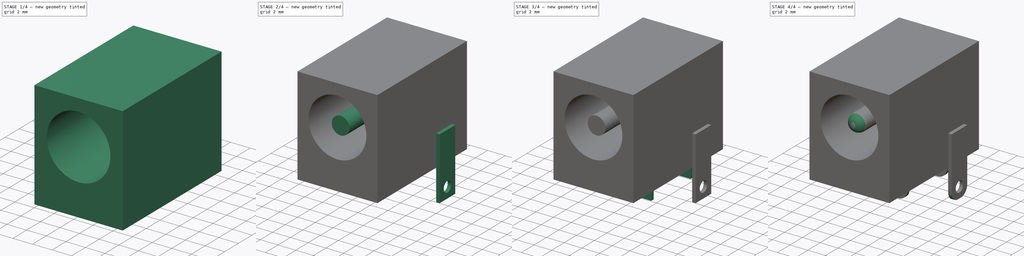
[diagram: build sequence overview — one tinted view per stage of 4, left to right]
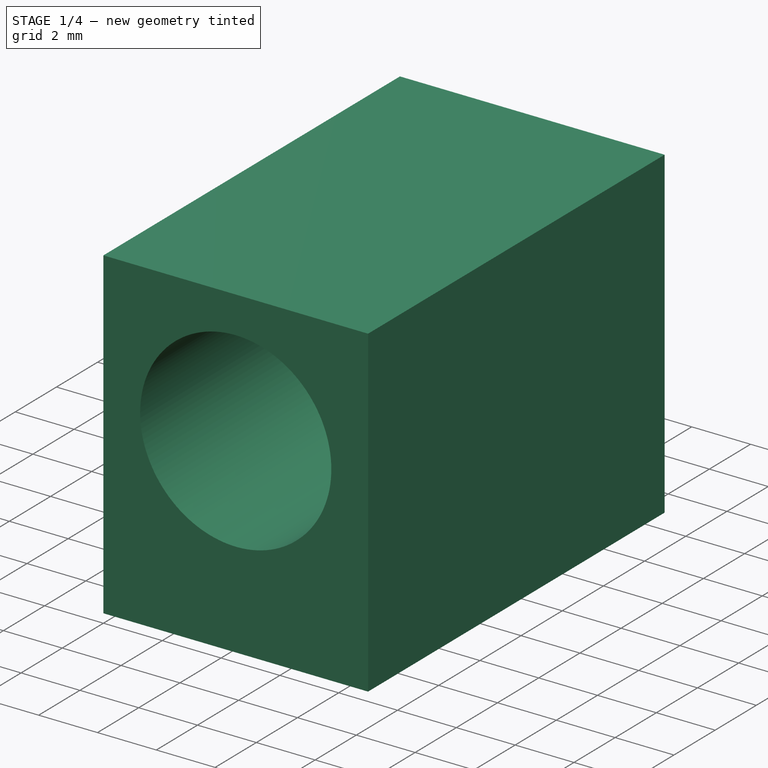
[diagram: stage 1 of 4 — iso view after this stage's code; geometry added in this stage tinted green]
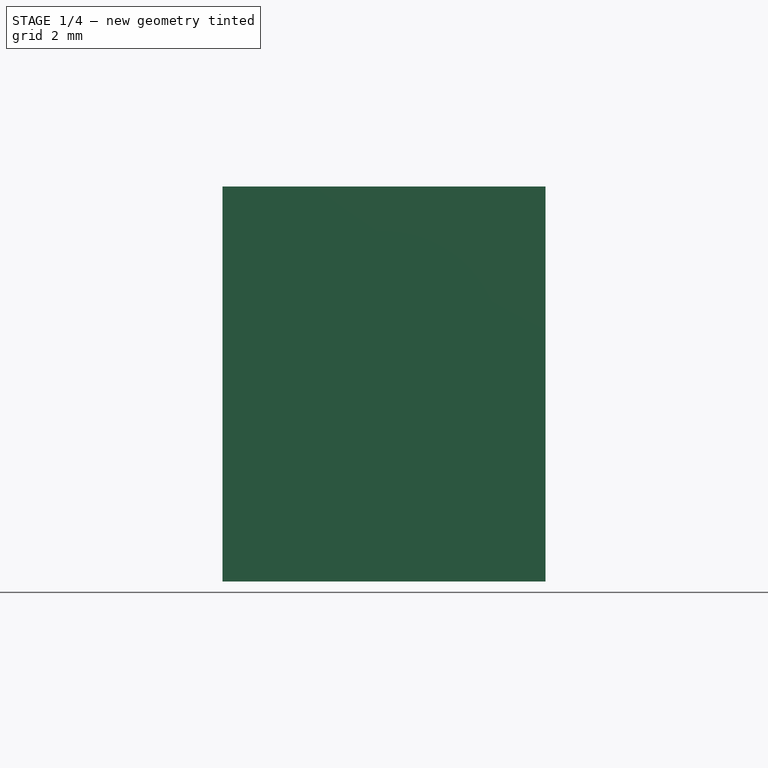
[diagram: stage 1 of 4 — front view after this stage's code; geometry added in this stage tinted green]
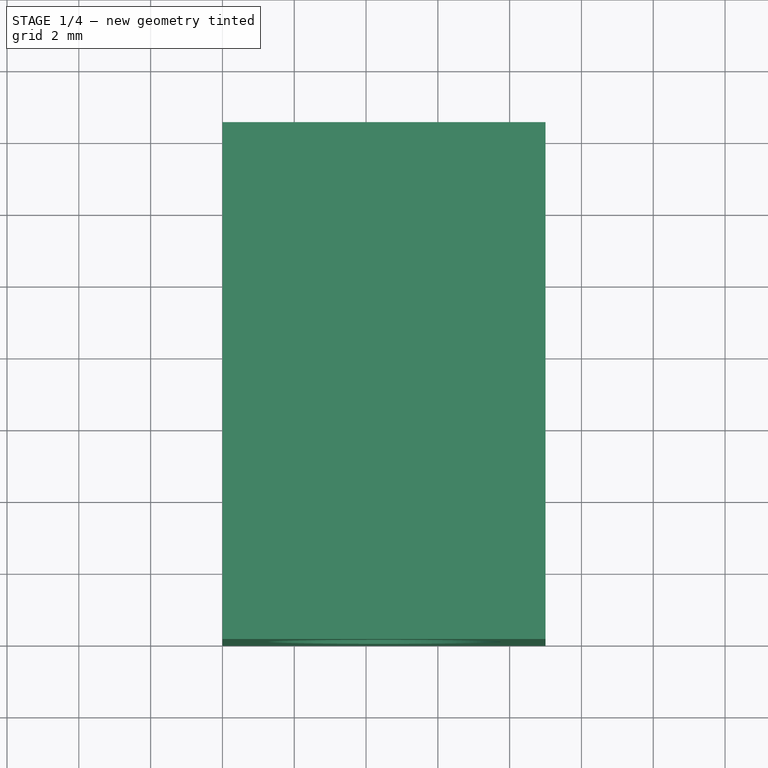
[diagram: stage 1 of 4 — top view after this stage's code; geometry added in this stage tinted green]
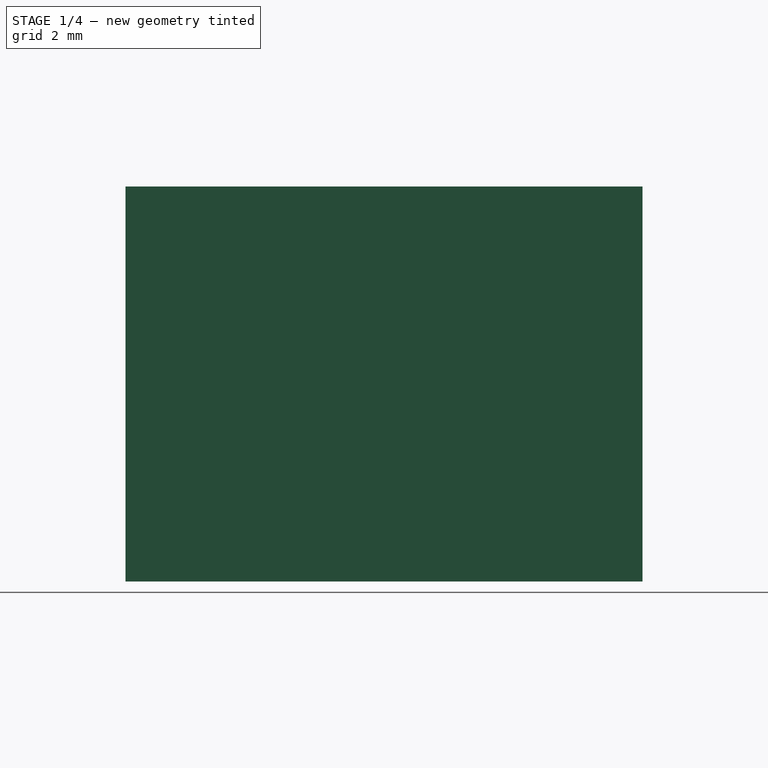
[diagram: stage 1 of 4 — right view after this stage's code; geometry added in this stage tinted green]
FCSTD DOCUMENT  (FreeCAD 1.0R39319 (Git))
Label: CUI_PJ002A
License: All rights reserved
LicenseURL: https://en.wikipedia.org/wiki/All_rights_reserved
objects: Sketcher::SketchObject×8, PartDesign::Pad×5, PartDesign::Hole×2, PartDesign::Fillet×2, PartDesign::Pocket×1, PartDesign::Body×1, Part::Feature×1
note: 48 computed .brp shape members not serialized (recipe doc carries the construction recipe); baked Part::Feature solids carry a one-line shape summary decoded from their .brp

FEATURE [Sketcher::SketchObject] Sketch
  ArcFitTolerance = 1e-06
  AttachmentSupport = -> [XZ_Plane]
  FullyConstrained = true
  MakeInternals = false
  MapMode = 5
  Placement = pos=(0,0,0) rot=(1,0,0;1.5708rad)
  sketch-geometry (4):
    g0: LineSegment StartX=0 StartY=0 StartZ=0 EndX=0 EndY=-11 EndZ=0
    g1: LineSegment StartX=0 StartY=-11 StartZ=0 EndX=9 EndY=-11 EndZ=0
    g2: LineSegment StartX=9 StartY=-11 StartZ=0 EndX=9 EndY=0 EndZ=0
    g3: LineSegment StartX=9 StartY=0 StartZ=0 EndX=0 EndY=0 EndZ=0
  constraints (11):
    c: Coincident(g0,g1)
    c: Coincident(g1,g2)
    c: Coincident(g2,g3)
    c: Coincident(g3,g0)
    c: Vertical(g0)
    c: Vertical(g2)
    c: Horizontal(g1)
    c: Horizontal(g3)
    c: Coincident(g0,g-1)
    c: DistanceX(g3,g3) = 9
    c: DistanceY(g0,g0) = 11
FEATURE [PartDesign::Pad] Pad
  Direction = (0,-1,2e-16)
  Length = 14.4
  Length2 = 10
  Placement = pos=(0,0,0) rot=(1,0,0;1.5708rad)
  Profile = -> Sketch
  ReferenceAxis = -> Sketch [N_Axis]
  Refine = true
  Reversed = true
  Suppressed = false
  Type = 0
FEATURE [Sketcher::SketchObject] Sketch001
  ArcFitTolerance = 1e-06
  AttachmentSupport = -> [Pad]
  ExternalGeometry = -> [Pad]
  FullyConstrained = true
  MakeInternals = false
  MapMode = 5
  Placement = pos=(0,-1.2e-15,0) rot=(1,0,0;1.5708rad)
  sketch-geometry (2):
    g0: Circle CenterX=4.5 CenterY=-4.5 CenterZ=0 NormalX=0 NormalY=0 NormalZ=1 AngleXU=0 Radius=3.25
    g1: LineSegment [constr] StartX=4.5 StartY=0 StartZ=0 EndX=4.5 EndY=-11 EndZ=0
  constraints (5):
    c: Symmetric(g-3,g-3,g1)
    c: Symmetric(g-5,g-5,g1)
    c: PointOnObject(g0,g1)
    c: DistanceY(g1,g0) = 6.5
    c: Diameter(g0) = 6.5
FEATURE [PartDesign::Pocket] Pocket
  BaseFeature = -> Pad
  Direction = (0,1,-2e-16)
  Length = 10
  Length2 = 5
  Placement = pos=(0,0,0) rot=(1,0,0;1.5708rad)
  Profile = -> Sketch001
  ReferenceAxis = -> Sketch001 [N_Axis]
  Refine = true
  Suppressed = false
  Type = 0
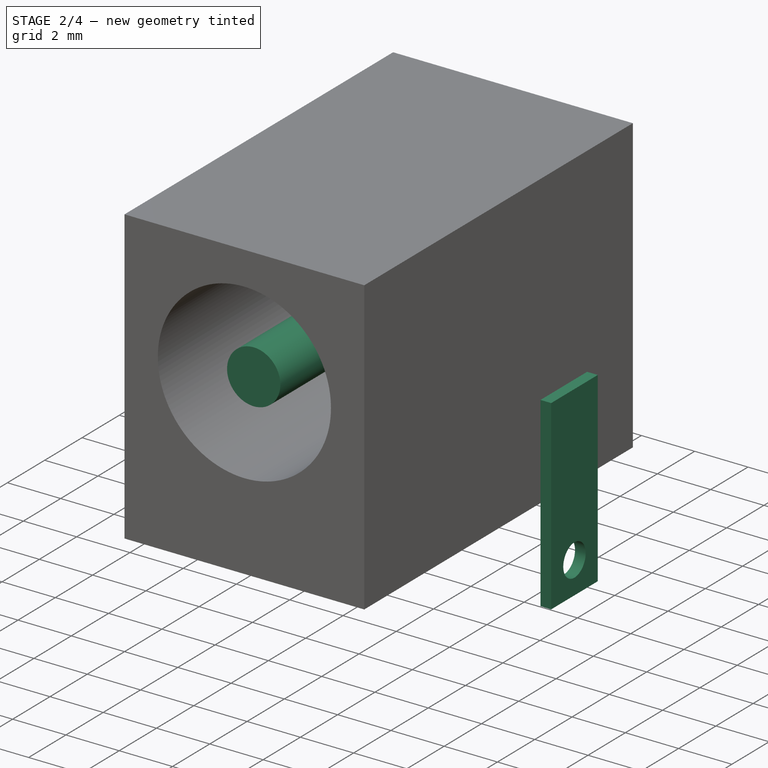
[diagram: stage 2 of 4 — iso view after this stage's code; geometry added in this stage tinted green]
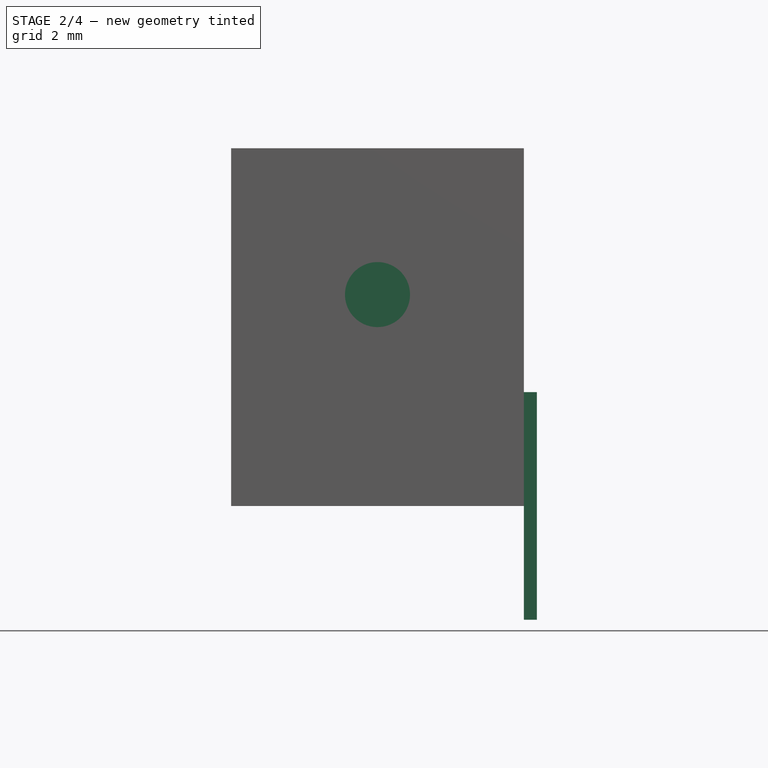
[diagram: stage 2 of 4 — front view after this stage's code; geometry added in this stage tinted green]
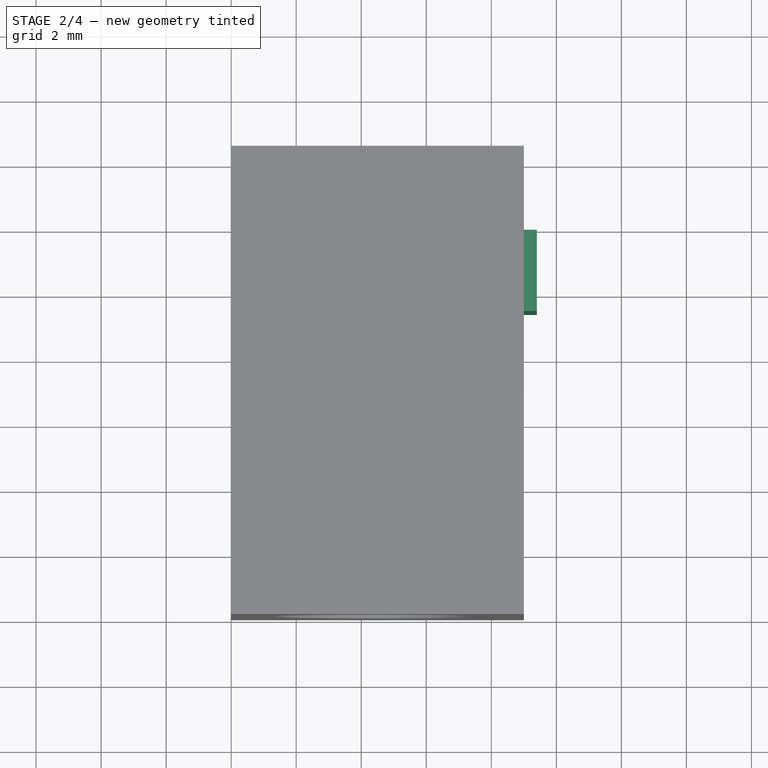
[diagram: stage 2 of 4 — top view after this stage's code; geometry added in this stage tinted green]
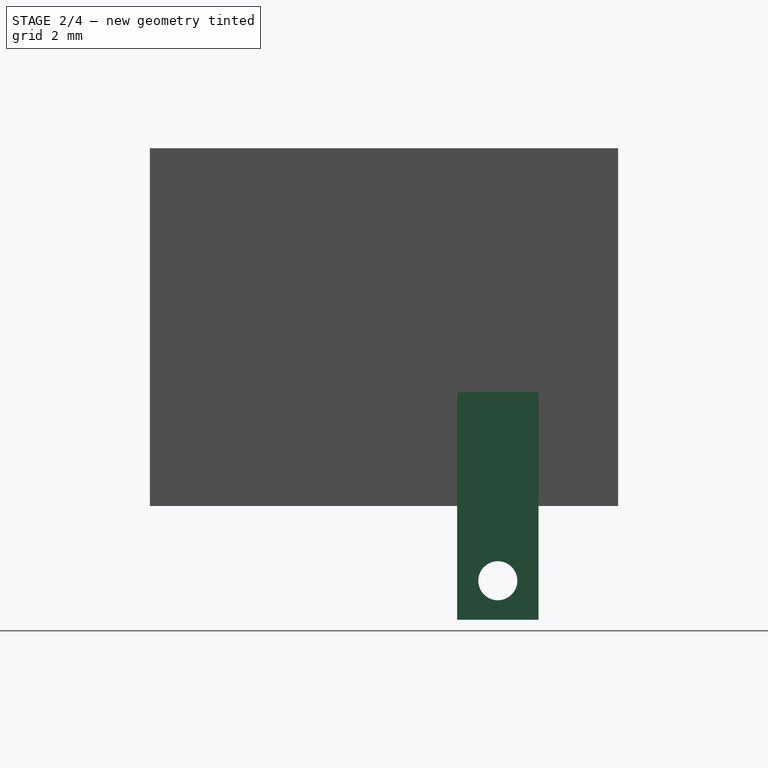
[diagram: stage 2 of 4 — right view after this stage's code; geometry added in this stage tinted green]
FEATURE [Sketcher::SketchObject] Sketch002
  ArcFitTolerance = 1e-06
  AttachmentOffset = pos=(0,0,-0.5) rot=(0,0,1;0rad)
  AttachmentSupport = -> [Pocket]
  ExternalGeometry = -> [Pocket]
  FullyConstrained = true
  MakeInternals = false
  MapMode = 5
  Placement = pos=(0,0.5,-1e-16) rot=(1,0,0;1.5708rad)
  sketch-geometry (1):
    g0: Circle CenterX=4.5 CenterY=-4.5 CenterZ=0 NormalX=0 NormalY=0 NormalZ=1 AngleXU=0 Radius=1
  constraints (2):
    c: Diameter(g0) = 2
    c: Coincident(g0,g-3)
FEATURE [PartDesign::Pad] Pad001
  BaseFeature = -> Pocket
  Direction = (0,-1,2e-16)
  Length = 10
  Length2 = 10
  Placement = pos=(0,0,0) rot=(1,0,0;1.5708rad)
  Profile = -> Sketch002
  ReferenceAxis = -> Sketch002 [N_Axis]
  Refine = true
  Reversed = true
  Suppressed = false
  Type = 0
FEATURE [Sketcher::SketchObject] Sketch003
  ArcFitTolerance = 1e-06
  AttachmentSupport = -> [Pad001]
  ExternalGeometry = -> [Pad001]
  FullyConstrained = true
  MakeInternals = false
  MapMode = 5
  Placement = pos=(9,0,0) rot=(0.707107,0,0.707107;3.14159rad)
  sketch-geometry (6):
    g0: GeomPoint [constr] X=-11 Y=-10.7 Z=0
    g1: LineSegment StartX=-14.5 StartY=-11.95 StartZ=0 EndX=-7.5 EndY=-11.95 EndZ=0
    g2: LineSegment StartX=-7.5 StartY=-11.95 StartZ=0 EndX=-7.5 EndY=-9.45 EndZ=0
    g3: LineSegment StartX=-7.5 StartY=-9.45 StartZ=0 EndX=-14.5 EndY=-9.45 EndZ=0
    g4: LineSegment StartX=-14.5 StartY=-9.45 StartZ=0 EndX=-14.5 EndY=-11.95 EndZ=0
    g5: GeomPoint [constr] X=-11 Y=-10.7 Z=0
  constraints (14):
    c: PointOnObject(g0,g-3)
    c: DistanceY(g0,g-3) = 10.7
    c: Coincident(g1,g2)
    c: Coincident(g2,g3)
    c: Coincident(g3,g4)
    c: Coincident(g4,g1)
    c: Horizontal(g1)
    c: Horizontal(g3)
    c: Vertical(g2)
    c: Vertical(g4)
    c: Symmetric(g3,g1,g5)
    c: Distance(g2,g4) = 7
    c: Distance(g1,g3) = 2.5
    c: Coincident(g5,g0)
FEATURE [PartDesign::Pad] Pad002
  BaseFeature = -> Pad001
  Direction = (1,0,-2e-16)
  Length = 0.4
  Length2 = 10
  Placement = pos=(0,0,0) rot=(1,0,0;1.5708rad)
  Profile = -> Sketch003
  ReferenceAxis = -> Sketch003 [N_Axis]
  Refine = true
  Suppressed = false
  Type = 0
FEATURE [Sketcher::SketchObject] Sketch004
  ArcFitTolerance = 1e-06
  AttachmentSupport = -> [Pad002]
  ExternalGeometry = -> [Pad002]
  FullyConstrained = true
  MakeInternals = false
  MapMode = 5
  Placement = pos=(9.4,0,-2.4e-15) rot=(0.707107,0,0.707107;3.14159rad)
  sketch-geometry (3):
    g0: GeomPoint [constr] X=-14.5 Y=-10.7 Z=0
    g1: LineSegment [constr] StartX=-14.5 StartY=-10.7 StartZ=0 EndX=-13.3 EndY=-10.7 EndZ=0
    g2: Circle CenterX=-13.3 CenterY=-10.7 CenterZ=0 NormalX=0 NormalY=0 NormalZ=1 AngleXU=0 Radius=0.5
  constraints (6):
    c: Symmetric(g-3,g-3,g0)
    c: Coincident(g1,g0)
    c: Horizontal(g1)
    c: DistanceX(g0,g1) = 1.2
    c: Coincident(g2,g1)
    c: Diameter(g2) = 1
FEATURE [PartDesign::Hole] Hole
  BaseFeature = -> Pad002
  CustomThreadClearance = 0
  Depth = 25
  DepthType = 0
  Diameter = 1.2
  DrillForDepth = false
  DrillPoint = 1
  DrillPointAngle = 118
  HoleCutCountersinkAngle = 90
  HoleCutCustomValues = false
  HoleCutDepth = 0
  HoleCutDiameter = 6.1
  HoleCutType = 0
  ModelThread = false
  Placement = pos=(0,0,0) rot=(1,0,0;1.5708rad)
  Profile = -> Sketch004
  Refine = true
  Suppressed = false
  Tapered = false
  TaperedAngle = 90
  ThreadClass = 0
  ThreadDepth = 25
  ThreadDepthType = 0
  ThreadDirection = 0
  ThreadFit = 0
  ThreadSize = 0
  ThreadType = 0
  Threaded = false
  UseCustomThreadClearance = false
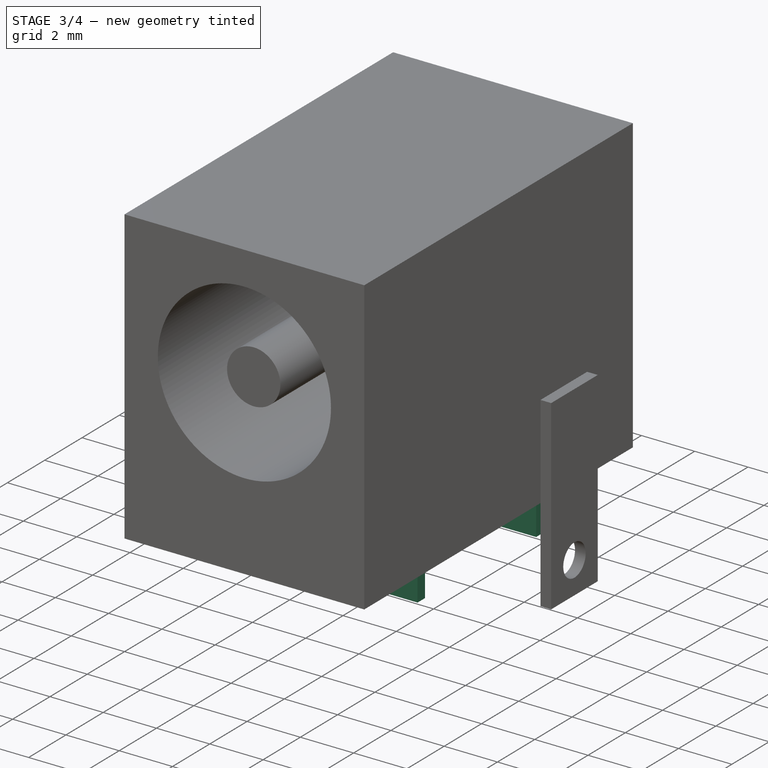
[diagram: stage 3 of 4 — iso view after this stage's code; geometry added in this stage tinted green]
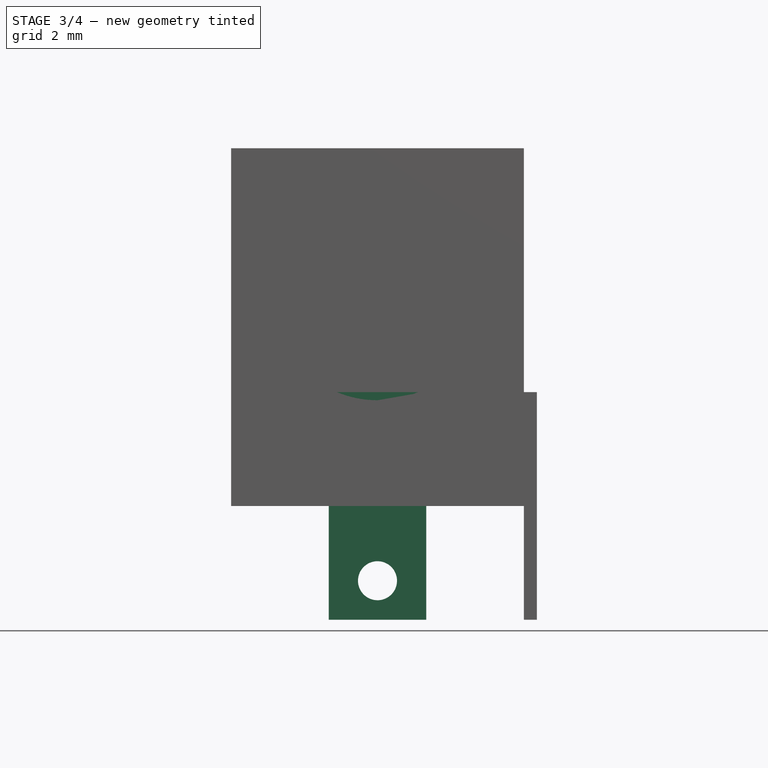
[diagram: stage 3 of 4 — front view after this stage's code; geometry added in this stage tinted green]
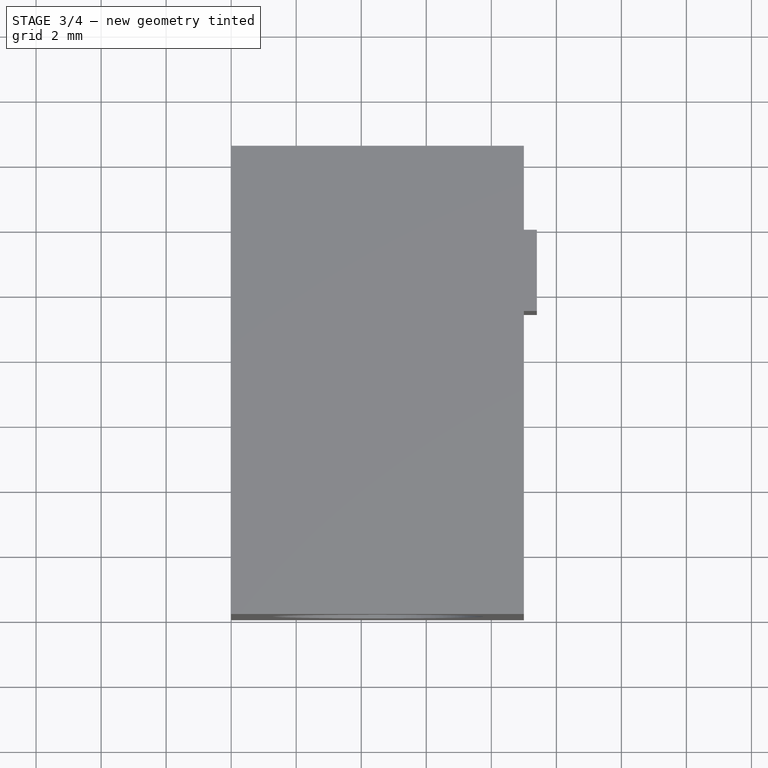
[diagram: stage 3 of 4 — top view after this stage's code; geometry added in this stage tinted green]
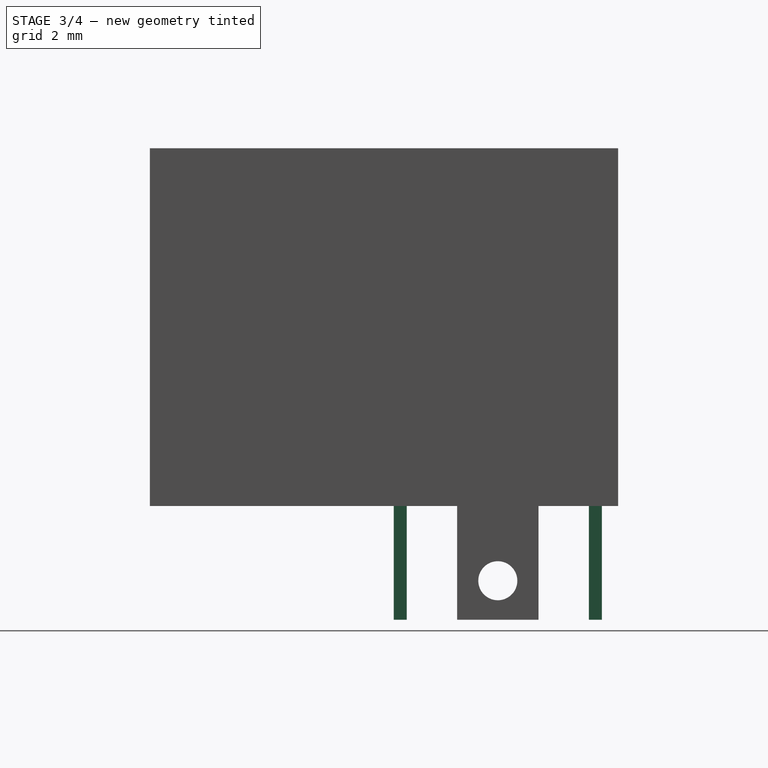
[diagram: stage 3 of 4 — right view after this stage's code; geometry added in this stage tinted green]
FEATURE [Sketcher::SketchObject] Sketch005
  ArcFitTolerance = 1e-06
  AttachmentOffset = pos=(0,0,-4.5) rot=(0,0,1;0rad)
  AttachmentSupport = -> [Hole]
  ExternalGeometry = -> [Hole]
  FullyConstrained = true
  MakeInternals = false
  MapMode = 5
  Placement = pos=(4.5,0,1e-15) rot=(0.707107,0,0.707107;3.14159rad)
  sketch-geometry (20):
    g0: LineSegment [constr] StartX=-7.5 StartY=-11.95 StartZ=0 EndX=-7.5 EndY=-7.7 EndZ=0
    g1: LineSegment [constr] StartX=-14.5 StartY=-11.95 StartZ=0 EndX=-14.5 EndY=-7.7 EndZ=0
    g2: LineSegment [constr] StartX=-14.5 StartY=-7.7 StartZ=0 EndX=-7.5 EndY=-7.7 EndZ=0
    g3: LineSegment [constr] StartX=-13.3 StartY=-10.7 StartZ=0 EndX=-13.3 EndY=-7.7 EndZ=0
    g4: GeomPoint [constr] X=-11 Y=-7.7 Z=0
    g5: LineSegment StartX=-14.5 StartY=-7.9 StartZ=0 EndX=-7.5 EndY=-7.9 EndZ=0
    g6: LineSegment StartX=-7.5 StartY=-7.9 StartZ=0 EndX=-7.5 EndY=-7.5 EndZ=0
    g7: LineSegment StartX=-7.5 StartY=-7.5 StartZ=0 EndX=-14.5 EndY=-7.5 EndZ=0
    g8: LineSegment StartX=-14.5 StartY=-7.5 StartZ=0 EndX=-14.5 EndY=-7.9 EndZ=0
    g9: GeomPoint [constr] X=-11 Y=-7.7 Z=0
    g10: LineSegment [constr] StartX=-13.3 StartY=-10.7 StartZ=0 EndX=-13.3 EndY=-13.7 EndZ=0
    g11: LineSegment [constr] StartX=-7.5 StartY=-11.95 StartZ=0 EndX=-7.5 EndY=-13.7 EndZ=0
    g12: LineSegment [constr] StartX=-14.5 StartY=-11.95 StartZ=0 EndX=-14.5 EndY=-13.7 EndZ=0
    g13: LineSegment [constr] StartX=-14.5 StartY=-13.7 StartZ=0 EndX=-7.5 EndY=-13.7 EndZ=0
    g14: GeomPoint [constr] X=-11 Y=-13.7 Z=0
    g15: LineSegment [constr] StartX=-14.5 StartY=-13.9 StartZ=0 EndX=-7.5 EndY=-13.9 EndZ=0
    g16: LineSegment [constr] StartX=-7.5 StartY=-13.9 StartZ=0 EndX=-7.5 EndY=-13.5 EndZ=0
    g17: LineSegment [constr] StartX=-7.5 StartY=-13.5 StartZ=0 EndX=-14.5 EndY=-13.5 EndZ=0
    g18: LineSegment [constr] StartX=-14.5 StartY=-13.5 StartZ=0 EndX=-14.5 EndY=-13.9 EndZ=0
    g19: GeomPoint [constr] X=-11 Y=-13.7 Z=0
  constraints (48):
    c: Coincident(g0,g-4)
    c: Coincident(g1,g-3)
    c: PointOnObject(g-4,g0)
    c: PointOnObject(g-3,g1)
    c: Coincident(g2,g1)
    c: Coincident(g2,g0)
    c: Horizontal(g2)
    c: Coincident(g3,g-6)
    c: PointOnObject(g3,g2)
    c: Vertical(g3)
    c: DistanceY(g3,g3) = 3
    c: Symmetric(g2,g2,g4)
    c: Coincident(g5,g6)
    c: Coincident(g6,g7)
    c: Coincident(g7,g8)
    c: Coincident(g8,g5)
    c: Horizontal(g5)
    c: Horizontal(g7)
    c: Vertical(g6)
    c: Vertical(g8)
    c: Symmetric(g7,g5,g9)
    c: Coincident(g9,g4)
    c: PointOnObject(g0,g6)
    c: DistanceY(g6,g6) = 0.4
    c: Coincident(g10,g3)
    c: Vertical(g10)
    c: Equal(g3,g10)
    c: Coincident(g11,g0)
    c: Vertical(g11)
    c: Horizontal(g11,g10)
    c: Coincident(g12,g1)
    c: Vertical(g12)
    c: Horizontal(g10,g12)
    c: Coincident(g13,g12)
    c: Coincident(g13,g11)
    c: Symmetric(g13,g13,g14)
    c: Coincident(g15,g16)
    c: Coincident(g16,g17)
    c: Coincident(g17,g18)
    c: Coincident(g18,g15)
    c: Horizontal(g15)
    c: Horizontal(g17)
    c: Vertical(g16)
    c: Vertical(g18)
    c: Symmetric(g17,g15,g19)
    c: Coincident(g19,g14)
    c: PointOnObject(g11,g16)
    c: Equal(g6,g16)
FEATURE [PartDesign::Pad] Pad003
  BaseFeature = -> Hole
  Direction = (1,0,-2e-16)
  Length = 2.5
  Length2 = 10
  Midplane = true
  Placement = pos=(0,0,0) rot=(1,0,0;1.5708rad)
  Profile = -> Sketch005
  ReferenceAxis = -> Sketch005 [N_Axis]
  Refine = true
  Suppressed = false
  Type = 0
FEATURE [Sketcher::SketchObject] Sketch006
  ArcFitTolerance = 1e-06
  AttachmentSupport = -> [Pad003]
  ExternalGeometry = -> [Pad003]
  FullyConstrained = true
  MakeInternals = false
  MapMode = 5
  Placement = pos=(0,7.5,0) rot=(1,0,0;1.5708rad)
  sketch-geometry (3):
    g0: GeomPoint [constr] X=4.5 Y=-14.5 Z=0
    g1: LineSegment [constr] StartX=4.5 StartY=-14.5 StartZ=0 EndX=4.5 EndY=-13.3 EndZ=0
    g2: Circle CenterX=4.5 CenterY=-13.3 CenterZ=0 NormalX=0 NormalY=0 NormalZ=1 AngleXU=0 Radius=0.5
  constraints (6):
    c: Symmetric(g-3,g-3,g0)
    c: Coincident(g1,g0)
    c: Vertical(g1)
    c: DistanceY(g0,g1) = 1.2
    c: Coincident(g2,g1)
    c: Diameter(g2) = 1
FEATURE [Sketcher::SketchObject] Sketch007
  ArcFitTolerance = 1e-06
  AttachmentOffset = pos=(0,0,-4.5) rot=(0,0,1;0rad)
  AttachmentSupport = -> [Hole]
  ExternalGeometry = -> [Hole]
  FullyConstrained = true
  MakeInternals = false
  MapMode = 5
  Placement = pos=(4.5,0,1e-15) rot=(0.707107,0,0.707107;3.14159rad)
  sketch-geometry (20):
    g0: LineSegment [constr] StartX=-7.5 StartY=-11.95 StartZ=0 EndX=-7.5 EndY=-7.7 EndZ=0
    g1: LineSegment [constr] StartX=-14.5 StartY=-11.95 StartZ=0 EndX=-14.5 EndY=-7.7 EndZ=0
    g2: LineSegment [constr] StartX=-14.5 StartY=-7.7 StartZ=0 EndX=-7.5 EndY=-7.7 EndZ=0
    g3: LineSegment [constr] StartX=-13.3 StartY=-10.7 StartZ=0 EndX=-13.3 EndY=-7.7 EndZ=0
    g4: GeomPoint [constr] X=-11 Y=-7.7 Z=0
    g5: LineSegment [constr] StartX=-14.5 StartY=-7.9 StartZ=0 EndX=-7.5 EndY=-7.9 EndZ=0
    g6: LineSegment [constr] StartX=-7.5 StartY=-7.9 StartZ=0 EndX=-7.5 EndY=-7.5 EndZ=0
    g7: LineSegment [constr] StartX=-7.5 StartY=-7.5 StartZ=0 EndX=-14.5 EndY=-7.5 EndZ=0
    g8: LineSegment [constr] StartX=-14.5 StartY=-7.5 StartZ=0 EndX=-14.5 EndY=-7.9 EndZ=0
    g9: GeomPoint [constr] X=-11 Y=-7.7 Z=0
    g10: LineSegment [constr] StartX=-13.3 StartY=-10.7 StartZ=0 EndX=-13.3 EndY=-13.7 EndZ=0
    g11: LineSegment [constr] StartX=-7.5 StartY=-11.95 StartZ=0 EndX=-7.5 EndY=-13.7 EndZ=0
    g12: LineSegment [constr] StartX=-14.5 StartY=-11.95 StartZ=0 EndX=-14.5 EndY=-13.7 EndZ=0
    g13: LineSegment [constr] StartX=-14.5 StartY=-13.7 StartZ=0 EndX=-7.5 EndY=-13.7 EndZ=0
    g14: GeomPoint [constr] X=-11 Y=-13.7 Z=0
    g15: LineSegment StartX=-14.5 StartY=-13.9 StartZ=0 EndX=-7.5 EndY=-13.9 EndZ=0
    g16: LineSegment StartX=-7.5 StartY=-13.9 StartZ=0 EndX=-7.5 EndY=-13.5 EndZ=0
    g17: LineSegment StartX=-7.5 StartY=-13.5 StartZ=0 EndX=-14.5 EndY=-13.5 EndZ=0
    g18: LineSegment StartX=-14.5 StartY=-13.5 StartZ=0 EndX=-14.5 EndY=-13.9 EndZ=0
    g19: GeomPoint [constr] X=-11 Y=-13.7 Z=0
  constraints (48):
    c: Coincident(g0,g-4)
    c: Coincident(g1,g-3)
    c: PointOnObject(g-4,g0)
    c: PointOnObject(g-3,g1)
    c: Coincident(g2,g1)
    c: Coincident(g2,g0)
    c: Horizontal(g2)
    c: Coincident(g3,g-6)
    c: PointOnObject(g3,g2)
    c: Vertical(g3)
    c: DistanceY(g3,g3) = 3
    c: Symmetric(g2,g2,g4)
    c: Coincident(g5,g6)
    c: Coincident(g6,g7)
    c: Coincident(g7,g8)
    c: Coincident(g8,g5)
    c: Horizontal(g5)
    c: Horizontal(g7)
    c: Vertical(g6)
    c: Vertical(g8)
    c: Symmetric(g7,g5,g9)
    c: Coincident(g9,g4)
    c: PointOnObject(g0,g6)
    c: DistanceY(g6,g6) = 0.4
    c: Coincident(g10,g3)
    c: Vertical(g10)
    c: Equal(g3,g10)
    c: Coincident(g11,g0)
    c: Vertical(g11)
    c: Horizontal(g11,g10)
    c: Coincident(g12,g1)
    c: Vertical(g12)
    c: Horizontal(g10,g12)
    c: Coincident(g13,g12)
    c: Coincident(g13,g11)
    c: Symmetric(g13,g13,g14)
    c: Coincident(g15,g16)
    c: Coincident(g16,g17)
    c: Coincident(g17,g18)
    c: Coincident(g18,g15)
    c: Horizontal(g15)
    c: Horizontal(g17)
    c: Vertical(g16)
    c: Vertical(g18)
    c: Symmetric(g17,g15,g19)
    c: Coincident(g19,g14)
    c: PointOnObject(g11,g16)
    c: Equal(g6,g16)
FEATURE [PartDesign::Pad] Pad004
  BaseFeature = -> Pad003
  Direction = (1,0,-2e-16)
  Length = 3
  Length2 = 10
  Midplane = true
  Placement = pos=(0,0,0) rot=(1,0,0;1.5708rad)
  Profile = -> Sketch007
  ReferenceAxis = -> Sketch007 [N_Axis]
  Refine = true
  Suppressed = false
  Type = 0
FEATURE [PartDesign::Hole] Hole001
  BaseFeature = -> Pad004
  CustomThreadClearance = 0
  Depth = 25
  DepthType = 0
  Diameter = 1.2
  DrillForDepth = false
  DrillPoint = 1
  DrillPointAngle = 118
  HoleCutCountersinkAngle = 90
  HoleCutCustomValues = false
  HoleCutDepth = 0
  HoleCutDiameter = 6.1
  HoleCutType = 0
  ModelThread = false
  Placement = pos=(0,0,0) rot=(1,0,0;1.5708rad)
  Profile = -> Sketch006
  Refine = true
  Suppressed = false
  Tapered = false
  TaperedAngle = 90
  ThreadClass = 0
  ThreadDepth = 25
  ThreadDepthType = 0
  ThreadDirection = 0
  ThreadFit = 0
  ThreadSize = 0
  ThreadType = 0
  Threaded = false
  UseCustomThreadClearance = false
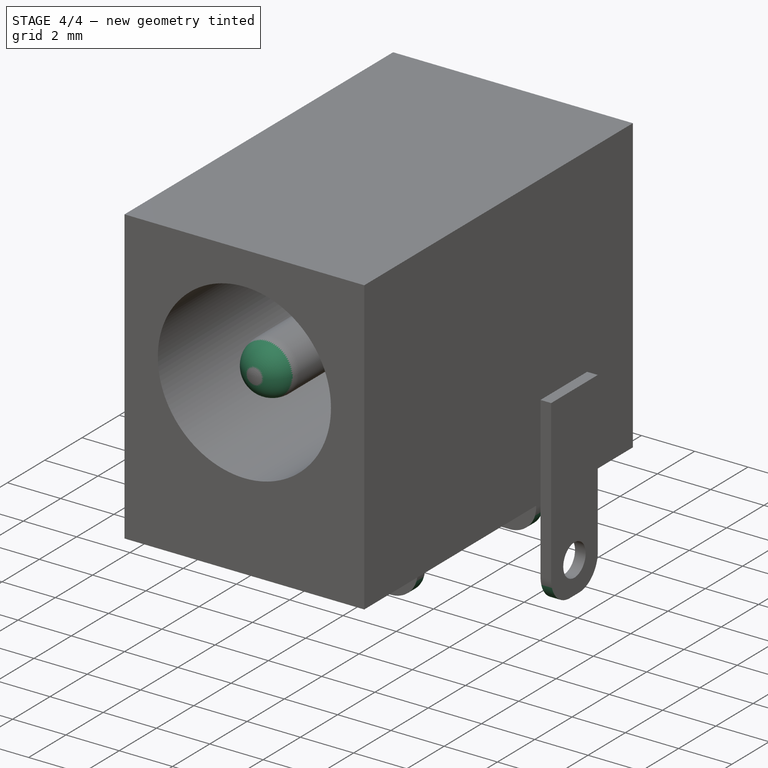
[diagram: stage 4 of 4 — iso view after this stage's code; geometry added in this stage tinted green]
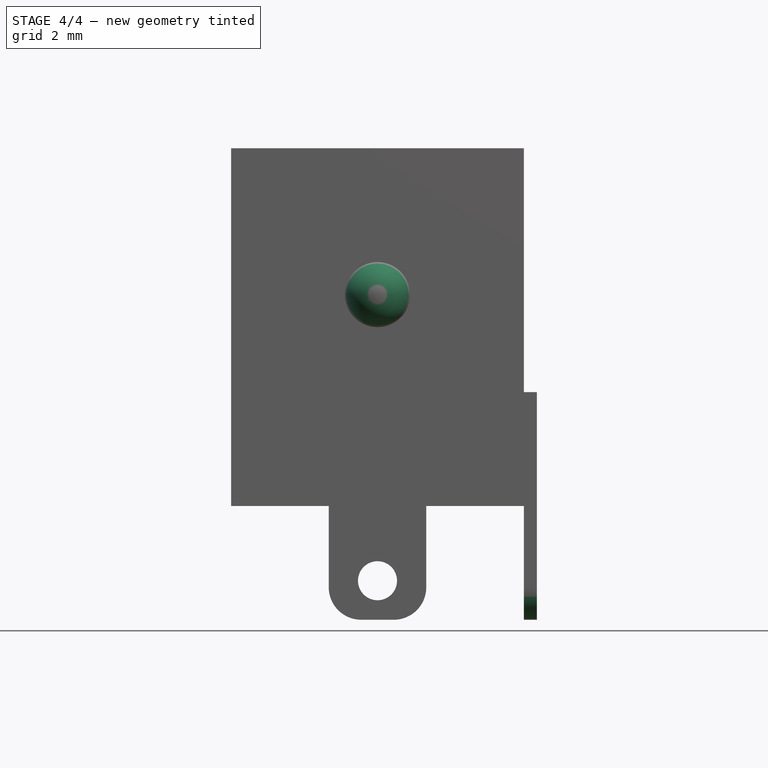
[diagram: stage 4 of 4 — front view after this stage's code; geometry added in this stage tinted green]
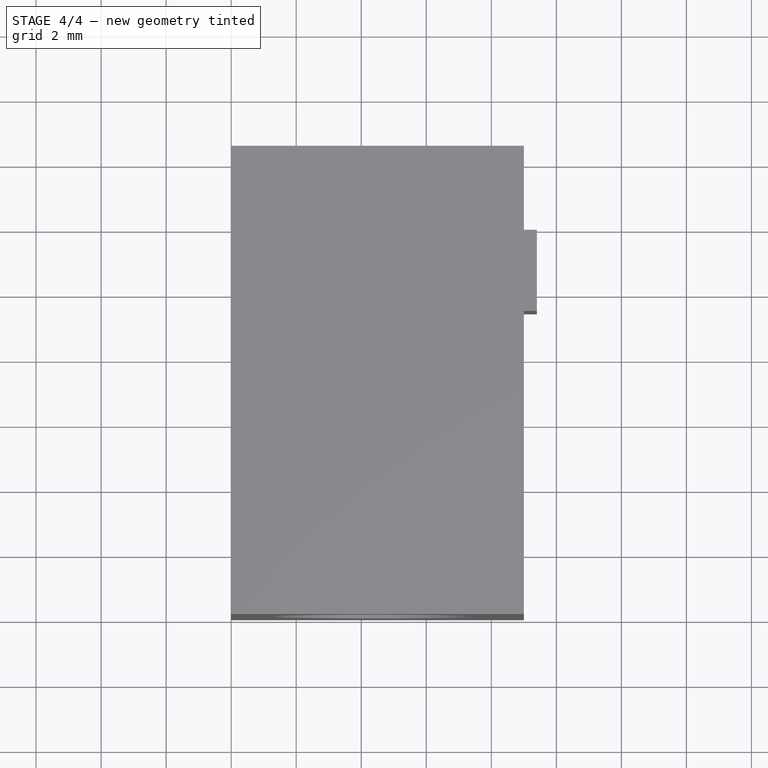
[diagram: stage 4 of 4 — top view after this stage's code; geometry added in this stage tinted green]
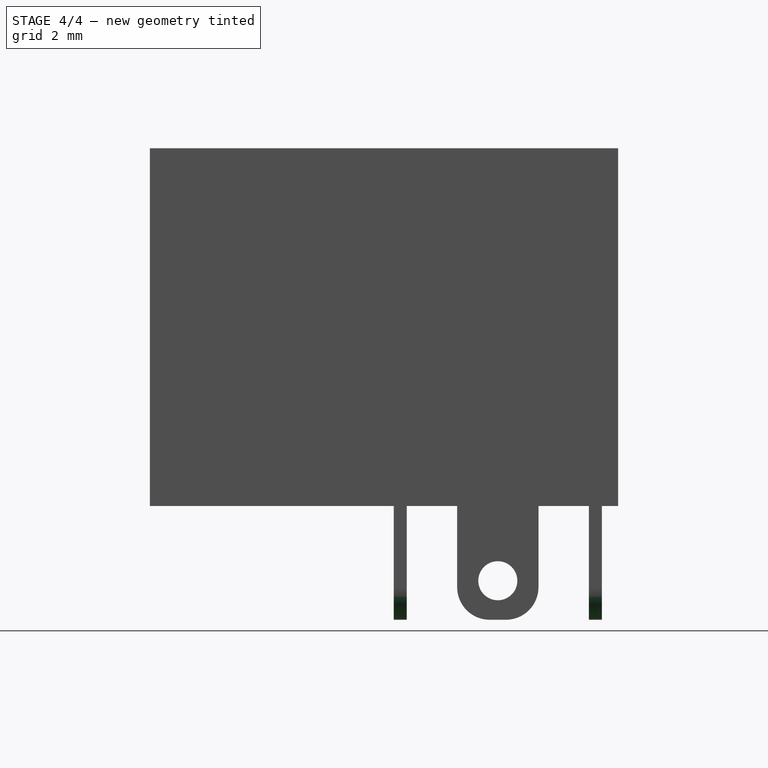
[diagram: stage 4 of 4 — right view after this stage's code; geometry added in this stage tinted green]
FEATURE [PartDesign::Fillet] Fillet
  Base = -> Hole001 [Edge72]
  BaseFeature = -> Hole001
  Placement = pos=(0,0,0) rot=(1,0,0;1.5708rad)
  Radius = 1
  Refine = true
  SupportTransform = false
  Suppressed = false
  UseAllEdges = false
FEATURE [PartDesign::Fillet] Fillet001
  Base = -> Fillet [Edge54,Edge63,Edge50,Edge44,Edge69,Edge64]
  BaseFeature = -> Fillet
  Placement = pos=(0,0,0) rot=(1,0,0;1.5708rad)
  Radius = 1
  Refine = true
  SupportTransform = false
  Suppressed = false
  UseAllEdges = false
FEATURE [PartDesign::Body] Body  label="CUI_PJ002A"
  AllowCompound = false
  Group = -> [Sketch,Pad,Sketch001,Pocket,Sketch002,Pad001,Sketch003,Pad002,Sketch004,Hole,Sketch005,Pad003,Sketch007,Pad004,Sketch006,Hole001,Fillet,Fillet001]
  Origin = -> Origin
  Tip = -> Fillet001
FEATURE [Part::Feature] Body001  label="CUI_PJ002A_Model"
  shape: bbox 9.4 x 14.4 x 14.5 mm, 38 faces (baked)
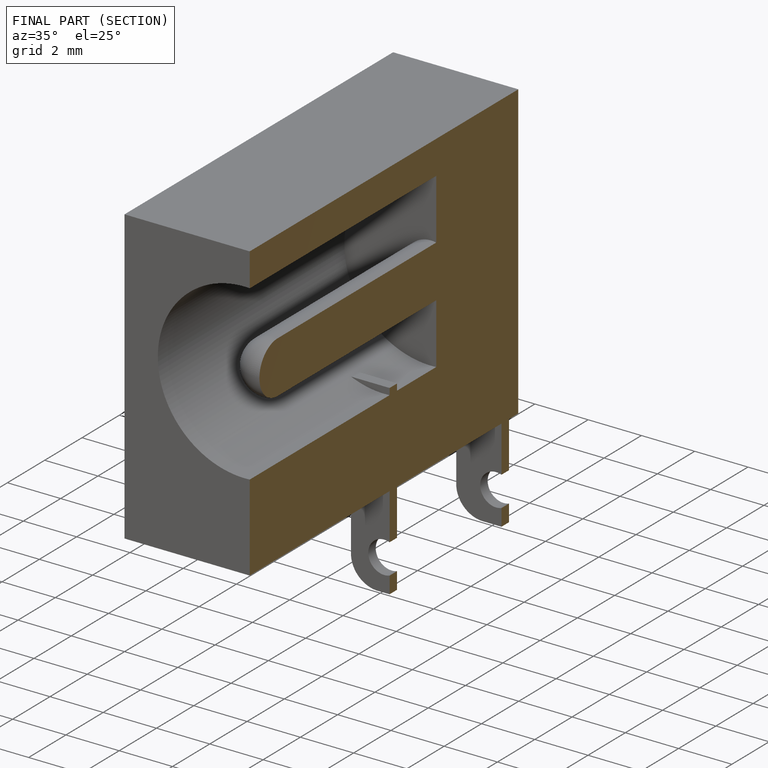
[diagram: finished part — half-section view (interior)]
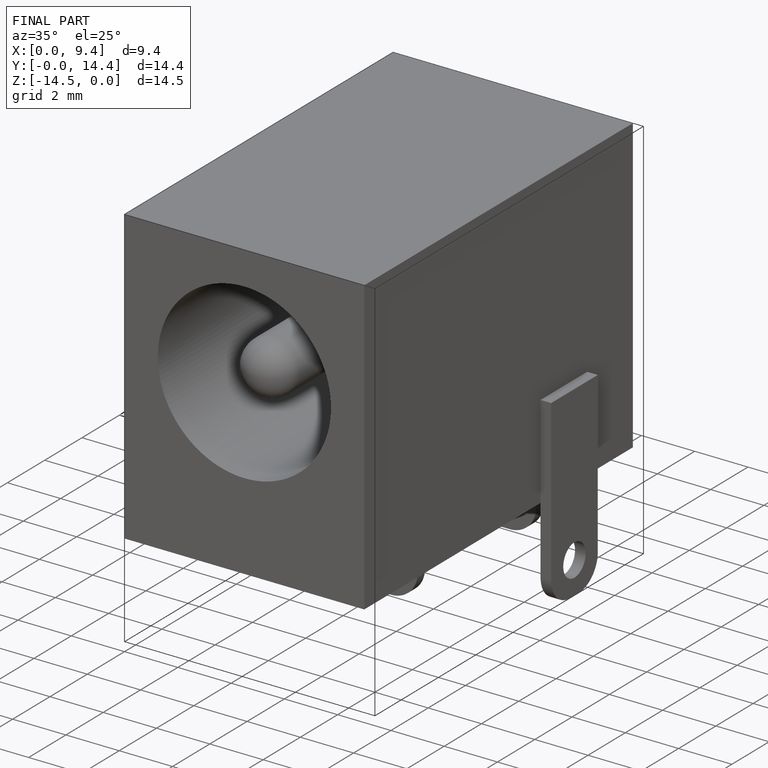
[diagram: finished part — iso view with bounding-box wireframe]
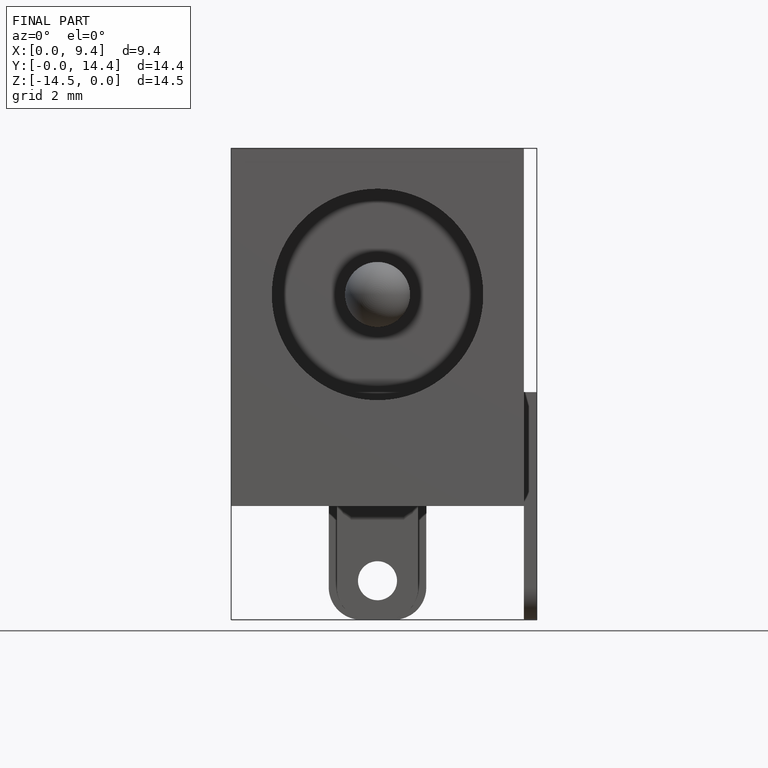
[diagram: finished part — front view with bounding-box wireframe]
